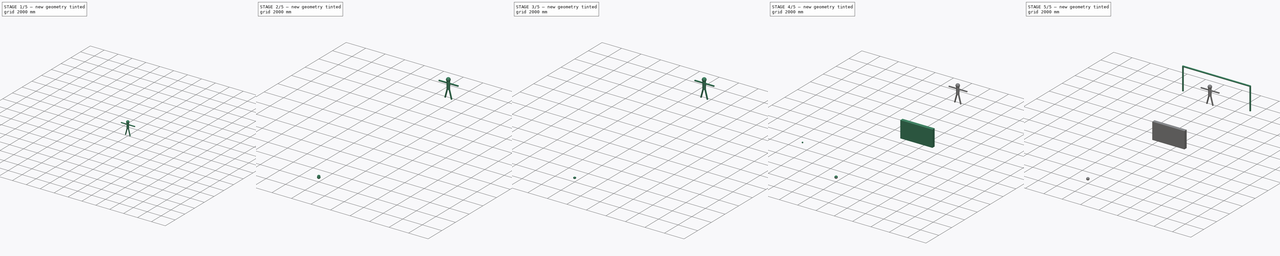
[diagram: build sequence overview — one tinted view per stage of 5, left to right]
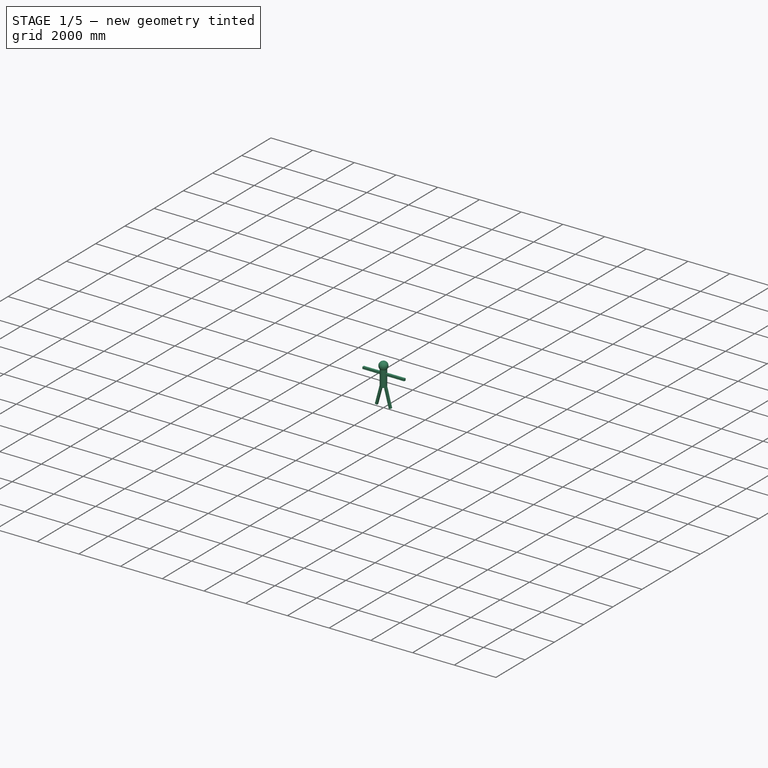
[diagram: stage 1 of 5 — iso view after this stage's code; geometry added in this stage tinted green]
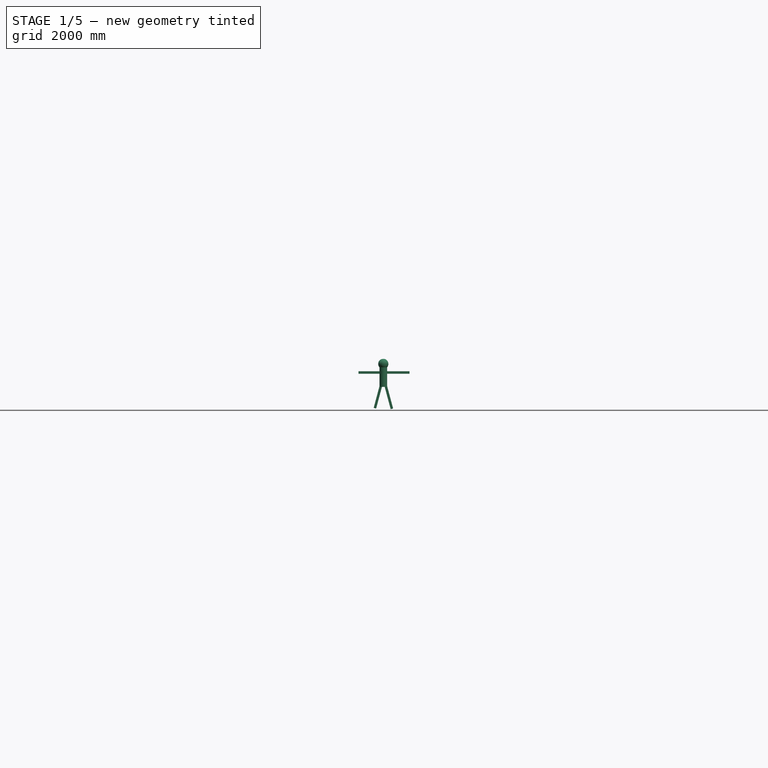
[diagram: stage 1 of 5 — front view after this stage's code; geometry added in this stage tinted green]
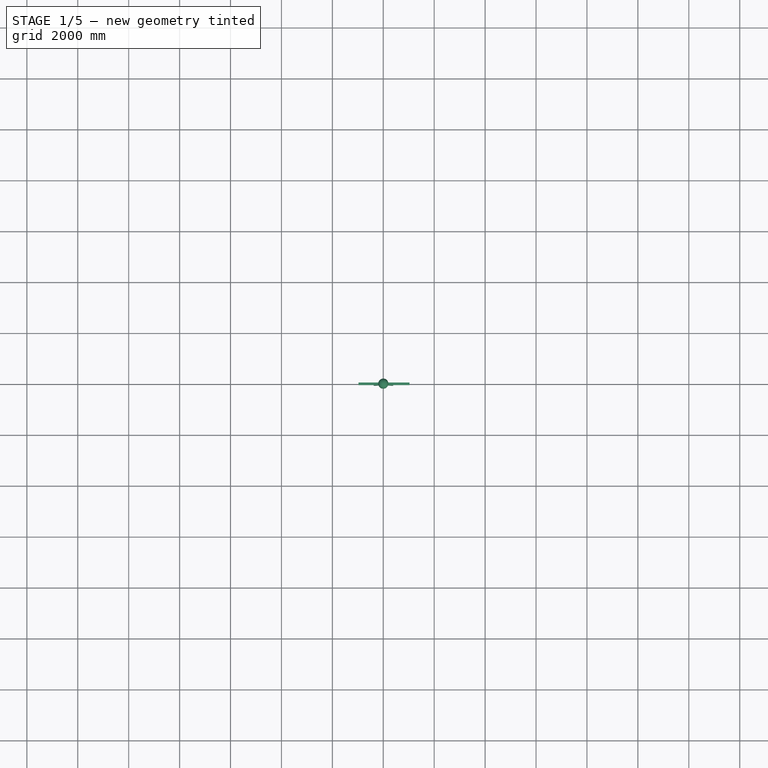
[diagram: stage 1 of 5 — top view after this stage's code; geometry added in this stage tinted green]
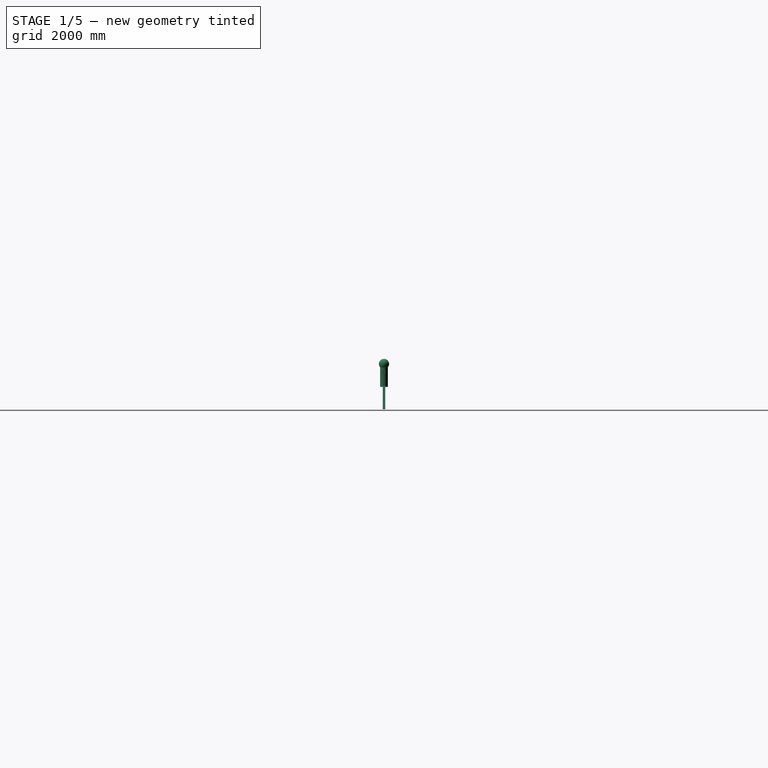
[diagram: stage 1 of 5 — right view after this stage's code; geometry added in this stage tinted green]
FCSTD DOCUMENT  (FreeCAD 0.21R31917 (Git))
Label: 115 - BOLA GOMO QUADRADO
License: All rights reserved
LicenseURL: http://en.wikipedia.org/wiki/All_rights_reserved
objects: Part::FeaturePython×5, Part::Cylinder×5, Part::Sphere×4, Part::Box×4, App::DocumentObjectGroup×3, Part::Compound×2, Part::MultiFuse×2, PartDesign::CoordinateSystem×2, App::Part×2, PartDesign::Body×1, Sketcher::SketchObject×1, PartDesign::Pad×1, PartDesign::Fillet×1, Part::MultiCommon×1, Part::Circle×1, Part::Sweep×1, App::FeaturePython×1, App::Link×1
note: 33 computed .brp shape members not serialized (recipe doc carries the construction recipe); baked Part::Feature solids carry a one-line shape summary decoded from their .brp

FEATURE [Part::Cylinder] Cylinder004
  Angle = 360
  AttacherType = Attacher::AttachEngine3D
  FirstAngle = 0
  Height = 900
  Placement = pos=(0,2.204e-13,1800) rot=(1,0,0;3.14159rad)
  Radius = 150
  SecondAngle = 0
FEATURE [Part::Sphere] Sphere003
  Angle1 = -90
  Angle2 = 90
  Angle3 = 360
  AttacherType = Attacher::AttachEngine3D
  Placement = pos=(0,0,1800) rot=(0,0,1;0rad)
  Radius = 200
FEATURE [Part::Box] Box001  label="Cube001"
  AttacherType = Attacher::AttachEngine3D
  Height = 1000
  Length = 100
  Placement = pos=(128.24,-50,1014.22) rot=(0,-1,0;3.40339rad)
  Width = 100
FEATURE [Part::Box] Box002  label="Cube002"
  AttacherType = Attacher::AttachEngine3D
  Height = 1000
  Length = 100
  Placement = pos=(-21.76,-50,1014.22) rot=(0,-1,0;2.87979rad)
  Width = 100
FEATURE [Part::Box] Box003  label="Cube003"
  AttacherType = Attacher::AttachEngine3D
  Height = 2000
  Length = 100
  Placement = pos=(1028.24,-50,1414.22) rot=(0,1,0;4.71239rad)
  Width = 100
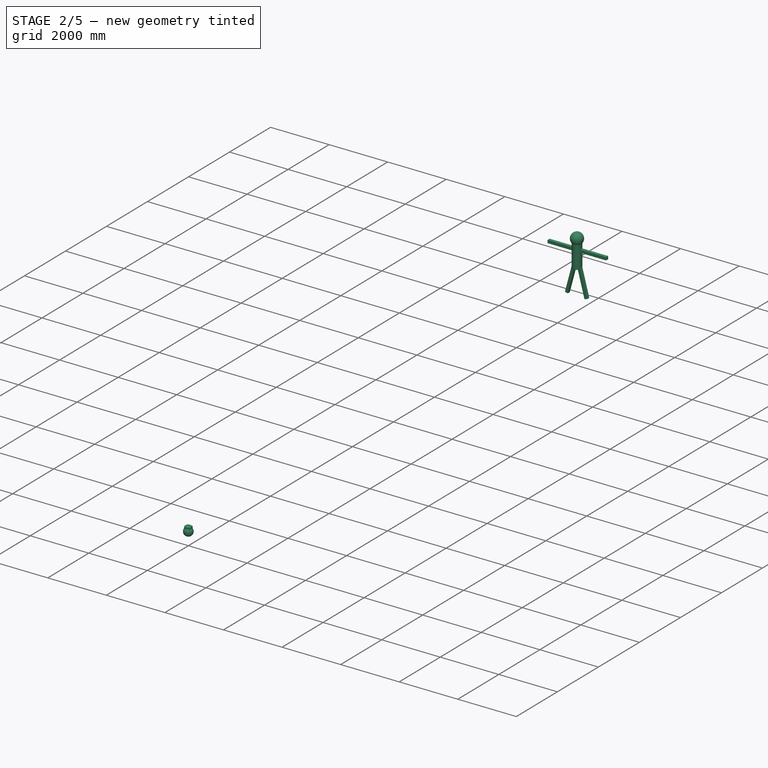
[diagram: stage 2 of 5 — iso view after this stage's code; geometry added in this stage tinted green]
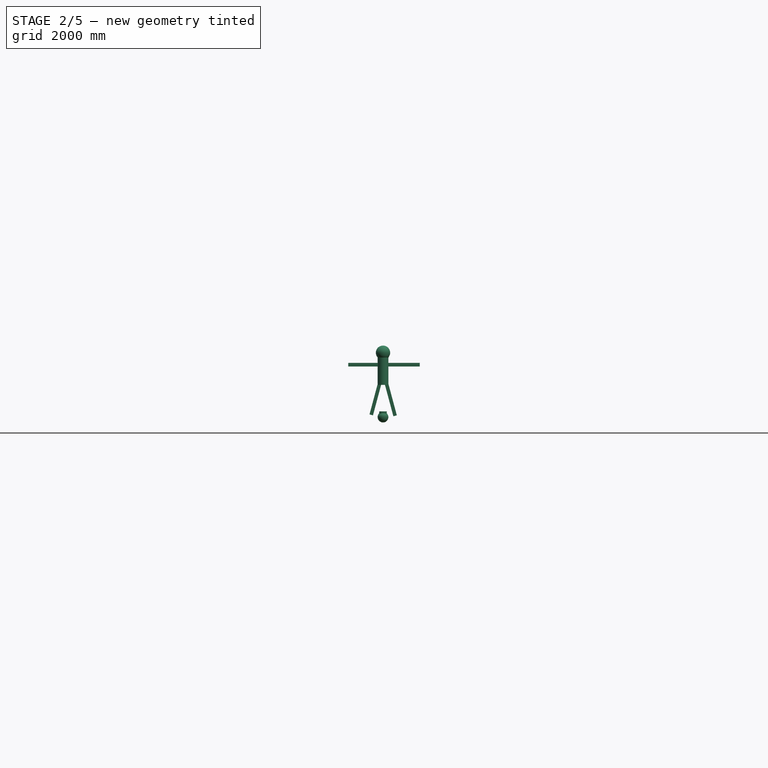
[diagram: stage 2 of 5 — front view after this stage's code; geometry added in this stage tinted green]
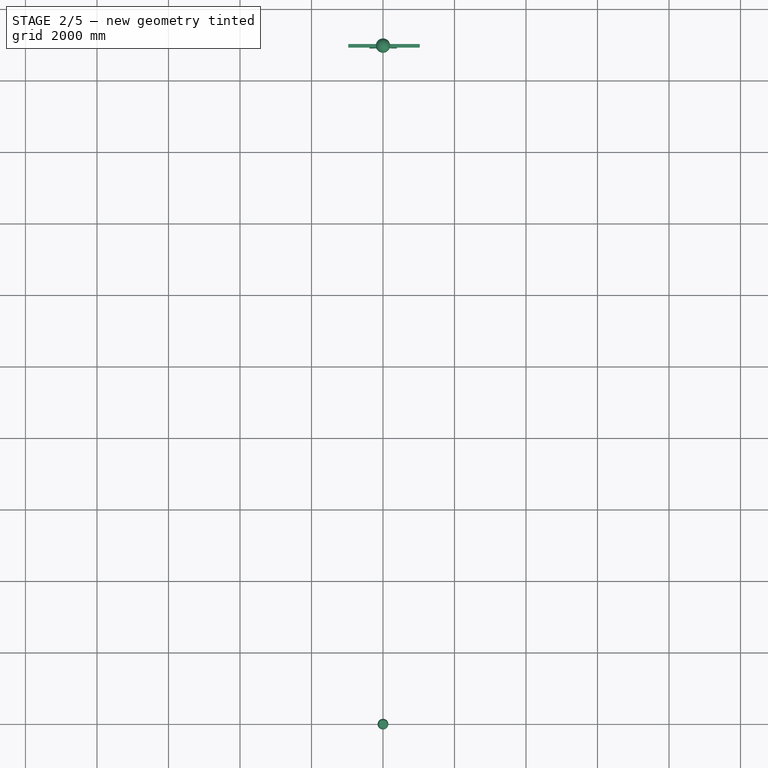
[diagram: stage 2 of 5 — top view after this stage's code; geometry added in this stage tinted green]
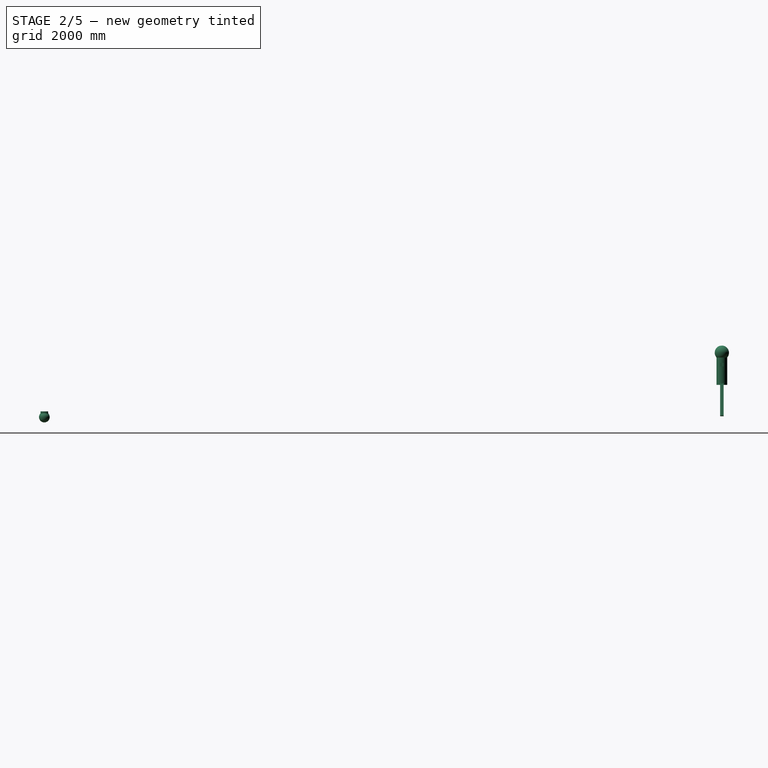
[diagram: stage 2 of 5 — right view after this stage's code; geometry added in this stage tinted green]
FEATURE [PartDesign::Body] Body
  Origin = -> Origin
FEATURE [Sketcher::SketchObject] Sketch
  FullyConstrained = false
  MapMode = 5
  Support = -> [XY_Plane]
  sketch-geometry (8):
    g0: LineSegment StartX=-86.675 StartY=86.675 StartZ=0 EndX=86.675 EndY=86.675 EndZ=0
    g1: LineSegment StartX=86.675 StartY=86.675 StartZ=0 EndX=86.675 EndY=-86.675 EndZ=0
    g2: LineSegment StartX=86.675 StartY=-86.675 StartZ=0 EndX=-86.675 EndY=-86.675 EndZ=0
    g3: LineSegment StartX=-86.675 StartY=-86.675 StartZ=0 EndX=-86.675 EndY=86.675 EndZ=0
    g4: ArcOfCircle CenterX=2.04e-14 CenterY=-99.1003 CenterZ=0 NormalX=0 NormalY=0 NormalZ=1 AngleXU=0 Radius=205 StartAngle=1.13426 EndAngle=2.00733
    g5: ArcOfCircle CenterX=99.1003 CenterY=-1.68e-14 CenterZ=0 NormalX=0 NormalY=0 NormalZ=1 AngleXU=0 Radius=205 StartAngle=2.70505 EndAngle=3.57813
    g6: ArcOfCircle CenterX=1.62e-14 CenterY=99.1003 CenterZ=0 NormalX=0 NormalY=0 NormalZ=1 AngleXU=0 Radius=205 StartAngle=4.27585 EndAngle=5.14893
    g7: ArcOfCircle CenterX=-99.1003 CenterY=-7.3e-15 CenterZ=0 NormalX=0 NormalY=0 NormalZ=1 AngleXU=0 Radius=205 StartAngle=5.84665 EndAngle=6.71972
  constraints (23):
    c: Coincident(g0,g1)
    c: Coincident(g1,g2)
    c: Coincident(g2,g3)
    c: Coincident(g3,g0)
    c: Horizontal(g0)
    c: Horizontal(g2)
    c: Vertical(g1)
    c: Vertical(g3)
    c: Symmetric(g2,g0,g-1)
    c: Equal(g0,g3)
    c: DistanceX(g0,g0) = 173.35
    c: Coincident(g4,g0)
    c: Coincident(g4,g0)
    c: Coincident(g5,g4)
    c: Coincident(g5,g2)
    c: Coincident(g6,g5)
    c: Coincident(g6,g1)
    c: Coincident(g7,g6)
    c: Coincident(g7,g4)
    c: Radius(g4) = 205
    c: Equal(g4,g5)
    c: Equal(g4,g6)
    c: Equal(g4,g7)
FEATURE [PartDesign::Pad] Pad
  AllowMultiFace = false
  Direction = (1,1,1)
  Length = 160
  Length2 = 100
  Profile = -> Sketch
  Type = 0
FEATURE [PartDesign::Fillet] Fillet
  Base = -> Pad [Edge2,Edge5,Edge1,Edge8]
  Radius = 25
  SupportTransform = false
  UseAllEdges = false
FEATURE [Part::Sphere] Sphere
  Angle1 = -90
  Angle2 = 90
  Angle3 = 360
  AttacherType = Attacher::AttachEngine3D
  Placement = pos=(0,0,0) rot=(0,1,0;1.5708rad)
  Radius = 150
FEATURE [PartDesign::CoordinateSystem] LCS_Origin
  AttacherType = Attacher::AttachEngine3D
  MapMode = 2
  Support = -> [X_Axis001]
FEATURE [App::DocumentObjectGroup] Constraints
FEATURE [App::FeaturePython] Variables  # WARN: FeaturePython — macro-defined, semantics opaque (R4)
  Type = App::PropertyContainer
  move = 5600
FEATURE [App::DocumentObjectGroup] Configurations
FEATURE [PartDesign::CoordinateSystem] LCS_0
  AttacherType = Attacher::AttachEngine3D
  MapMode = 2
  Support = -> [X_Axis002]
FEATURE [App::Part] Part
  Group = -> [LCS_0,Sketch,Pad,Fillet,Sphere,Common,Circle,Sweep,Compound,Clone,Clone001,Clone002,Clone003,Clone004,Compound001]
  Origin = -> Origin002
FEATURE [App::DocumentObjectGroup] Parts
  Group = -> [Body,Part]
FEATURE [App::Link] Part001
  AssemblyType = Part::Link
  AttachedBy = #LCS_0
  AttachedTo = Parent Assembly#LCS_Origin
  LinkPlacement = pos=(2778.72,5600,1639.6) rot=(1,1,1;9.77384rad)
  LinkedObject = -> Part
  Placement = pos=(2778.72,5600,1639.6) rot=(1,1,1;9.77384rad)
  SolverId = Asm4EE
  expr: .Placement.Base.x = Variables.move * -2.3e-05 * Variables.move + 0.625 * Variables.move
  expr: .Placement.Base.y = Variables.move
  expr: .Placement.Base.z = 150 + Variables.move * -1.5e-05 * Variables.move + 0.35 * Variables.move
  expr: .Placement.Rotation.Angle = Variables.move / 10
FEATURE [App::Part] Model
  AssemblyType = Part::Link
  Group = -> [LCS_Origin,Constraints,Variables,Configurations,Part001]
  Origin = -> Origin001
  Type = Assembly
FEATURE [Part::Cylinder] Cylinder003
  Angle = 360
  AttacherType = Attacher::AttachEngine3D
  FirstAngle = 0
  Height = 10
  Radius = 2
  SecondAngle = 0
FEATURE [Part::MultiFuse] Fusion001
  Placement = pos=(0,18950,0) rot=(0,0,1;0rad)
  Shapes = -> [Box003,Box002,Box001,Sphere003,Cylinder004]
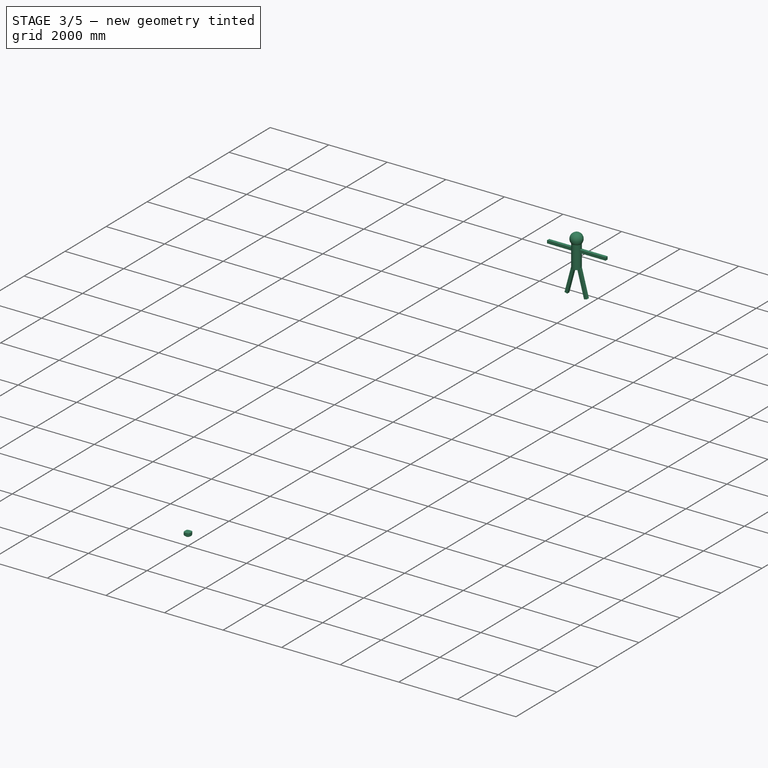
[diagram: stage 3 of 5 — iso view after this stage's code; geometry added in this stage tinted green]
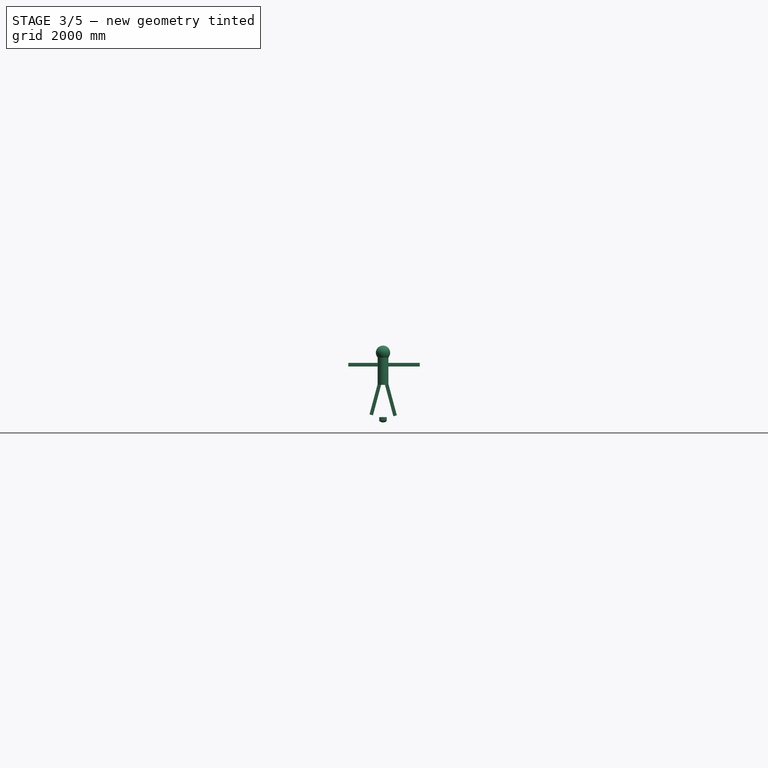
[diagram: stage 3 of 5 — front view after this stage's code; geometry added in this stage tinted green]
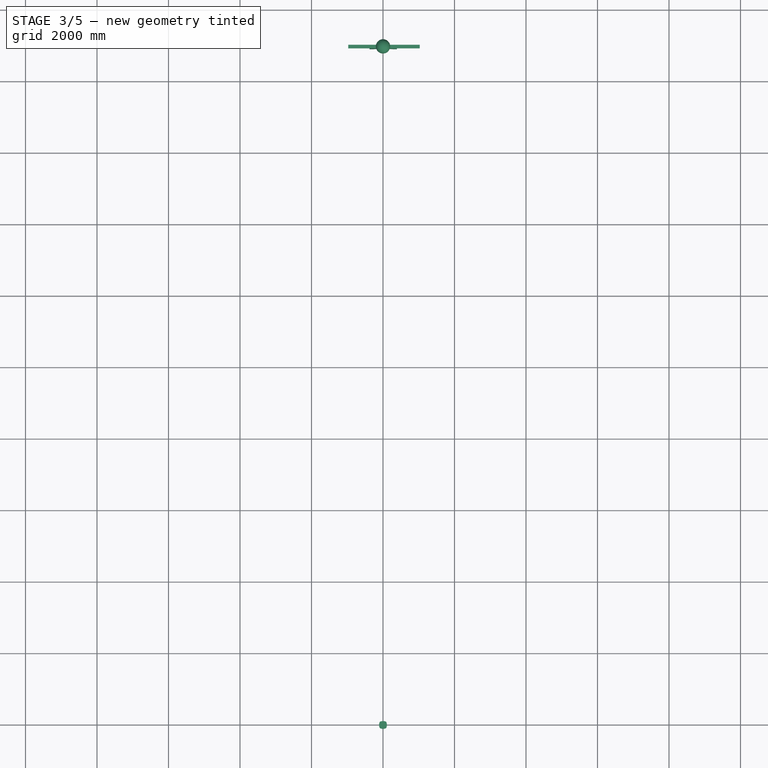
[diagram: stage 3 of 5 — top view after this stage's code; geometry added in this stage tinted green]
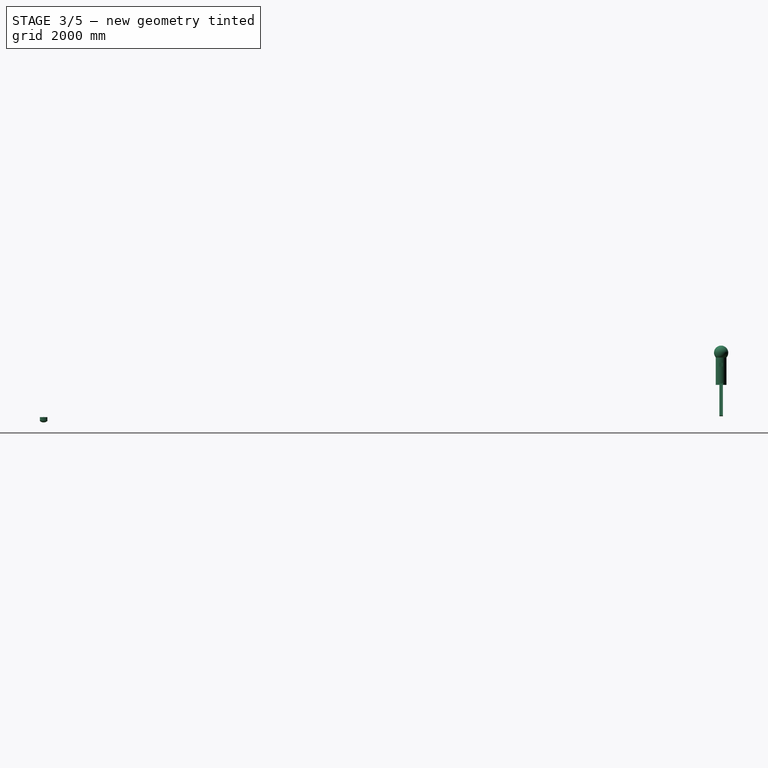
[diagram: stage 3 of 5 — right view after this stage's code; geometry added in this stage tinted green]
FEATURE [Part::MultiCommon] Common
  Shapes = -> [Sphere,Fillet]
FEATURE [Part::Circle] Circle
  Angle1 = 0
  Angle2 = 360
  AttacherType = Attacher::AttachEngine3D
  Placement = pos=(-2.4e-14,-105.72,106.06) rot=(0,-1,0;1.5708rad)
  Radius = 4
FEATURE [Part::Sweep] Sweep
  Frenet = true
  Sections = -> [Circle]
  Solid = true
  Spine = -> Common [Edge4,Edge3,Edge2,Edge1,Edge8,Edge7,Edge6,Edge5]
  Transition = 1
FEATURE [Part::Compound] Compound
  Links = -> [Common,Sweep]
FEATURE [Part::FeaturePython] Clone  label="Compound001"  # Draft clone (typed FeaturePython)
  AttacherType = Attacher::AttachEngine3D
  Fuse = false
  Objects = -> [Compound]
  Placement = pos=(0,0,0) rot=(1,0,0;1.5708rad)
  Scale = (1,1,1)
FEATURE [Part::FeaturePython] Clone001  label="Compound002"  # Draft clone (typed FeaturePython)
  AttacherType = Attacher::AttachEngine3D
  Fuse = false
  Objects = -> [Clone]
  Placement = pos=(0,0,0) rot=(-1,0,0;1.5708rad)
  Scale = (1,1,1)
FEATURE [Part::FeaturePython] Clone002  label="Compound003"  # Draft clone (typed FeaturePython)
  AttacherType = Attacher::AttachEngine3D
  Fuse = false
  Objects = -> [Clone001]
  Placement = pos=(0,0,0) rot=(1,0,0;3.14159rad)
  Scale = (1,1,1)
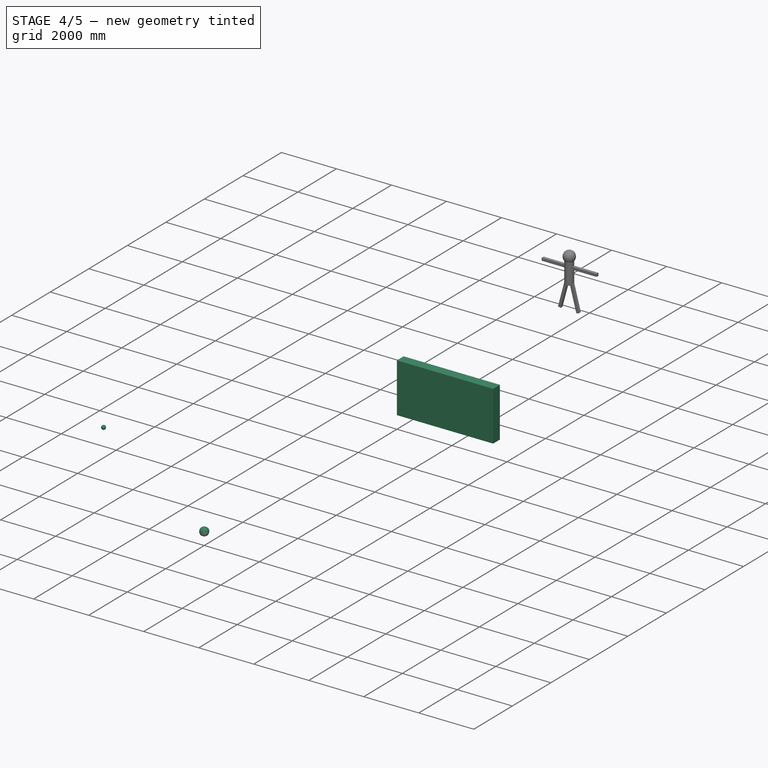
[diagram: stage 4 of 5 — iso view after this stage's code; geometry added in this stage tinted green]
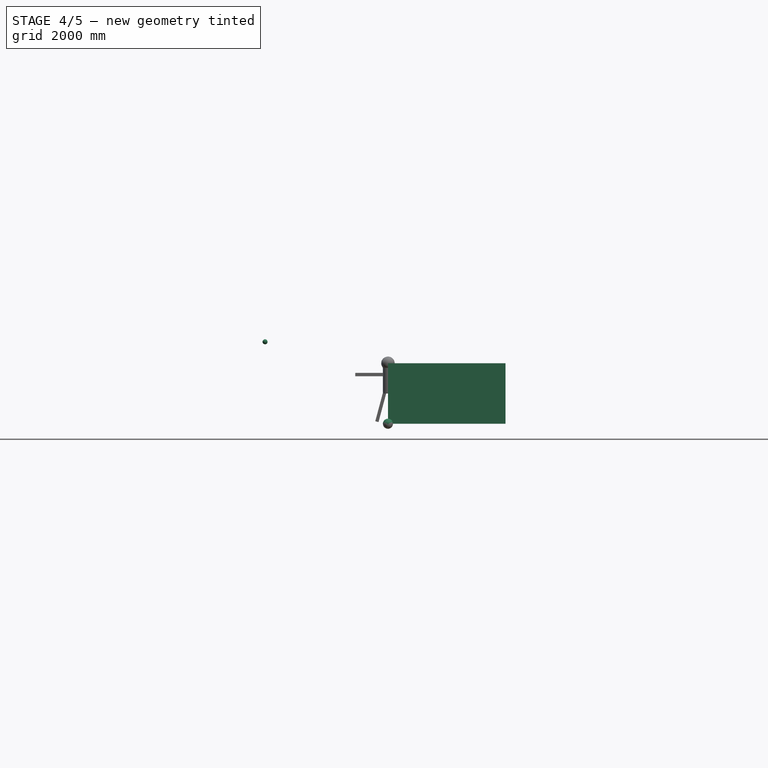
[diagram: stage 4 of 5 — front view after this stage's code; geometry added in this stage tinted green]
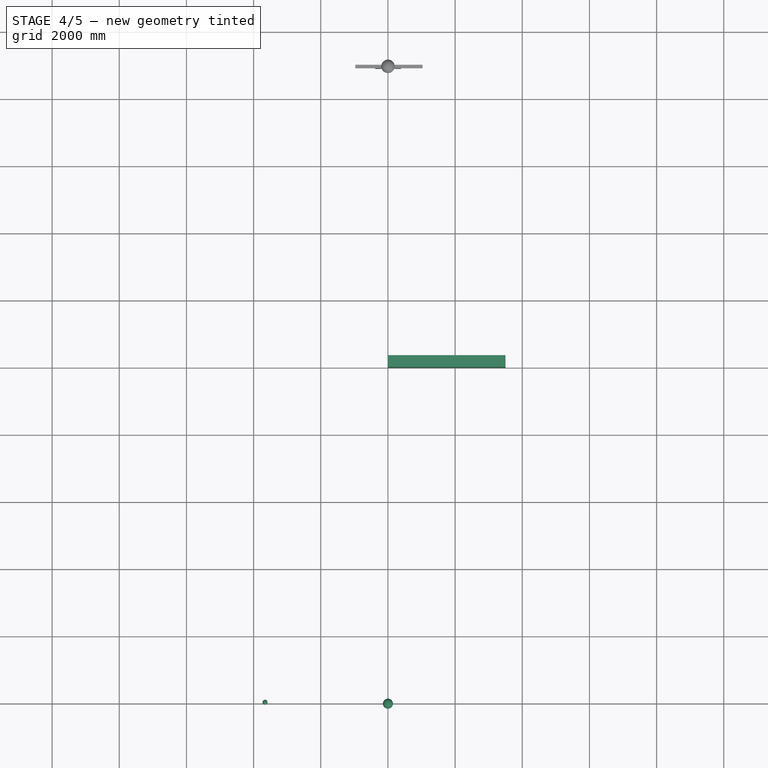
[diagram: stage 4 of 5 — top view after this stage's code; geometry added in this stage tinted green]
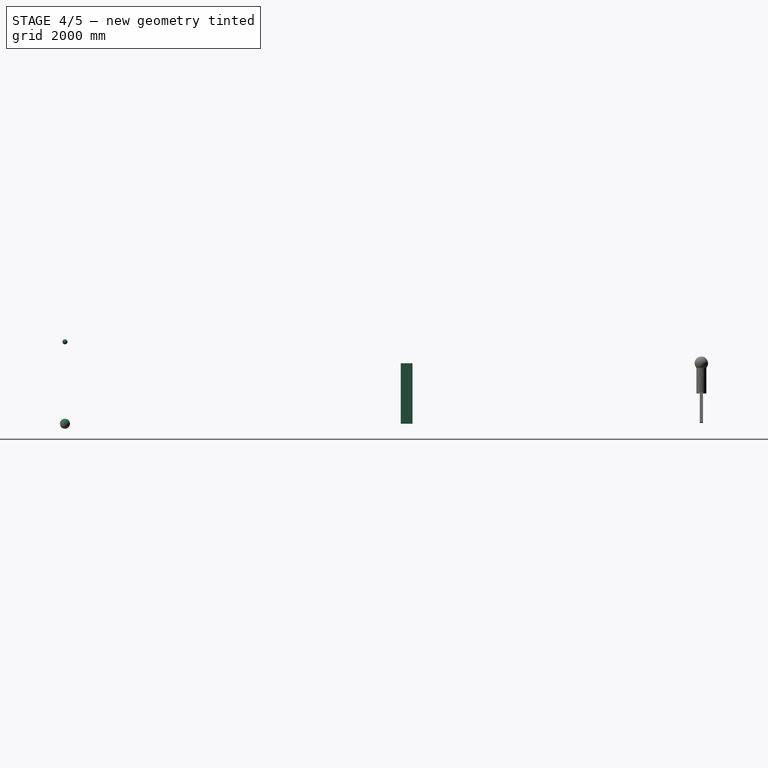
[diagram: stage 4 of 5 — right view after this stage's code; geometry added in this stage tinted green]
FEATURE [Part::FeaturePython] Clone003  label="Compound004"  # Draft clone (typed FeaturePython)
  AttacherType = Attacher::AttachEngine3D
  Fuse = false
  Objects = -> [Clone002]
  Placement = pos=(0,0,0) rot=(0,1,0;1.5708rad)
  Scale = (1,1,1)
FEATURE [Part::FeaturePython] Clone004  label="Compound005"  # Draft clone (typed FeaturePython)
  AttacherType = Attacher::AttachEngine3D
  Fuse = false
  Objects = -> [Clone003]
  Placement = pos=(0,0,0) rot=(0,-1,0;1.5708rad)
  Scale = (1,1,1)
FEATURE [Part::Compound] Compound001  label="Compound006"
  Links = -> [Clone004,Clone003,Clone002,Clone001,Clone,Compound]
FEATURE [Part::Sphere] Sphere002
  Angle1 = -90
  Angle2 = 90
  Angle3 = 360
  AttacherType = Attacher::AttachEngine3D
  Placement = pos=(-3660,0,2440) rot=(0,0,1;0rad)
  Radius = 75
FEATURE [Part::Box] Box  label="Cube"
  AttacherType = Attacher::AttachEngine3D
  Height = 1800
  Length = 3500
  Placement = pos=(0,10000,0) rot=(0,0,1;0rad)
  Width = 350
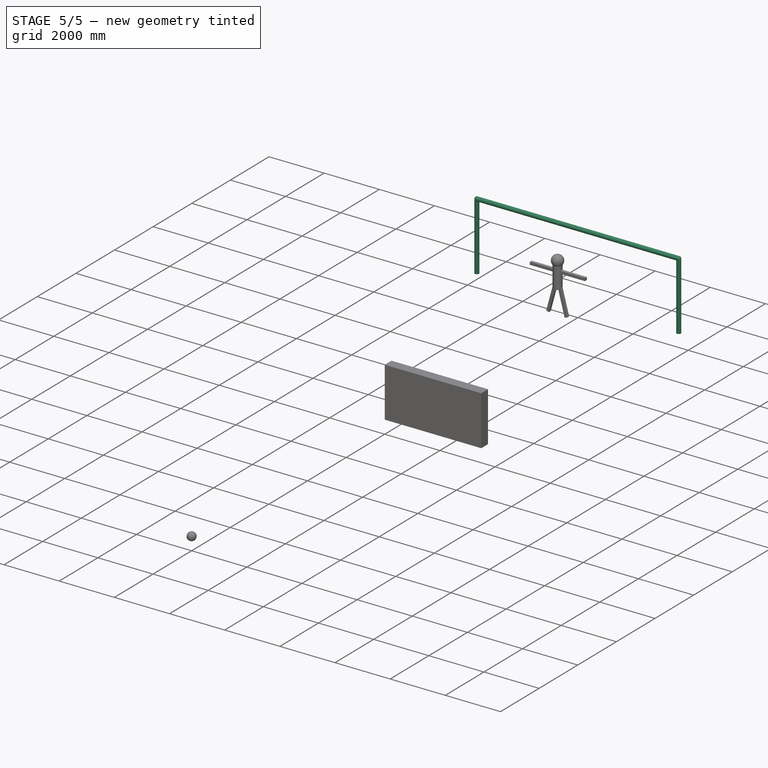
[diagram: stage 5 of 5 — iso view after this stage's code; geometry added in this stage tinted green]
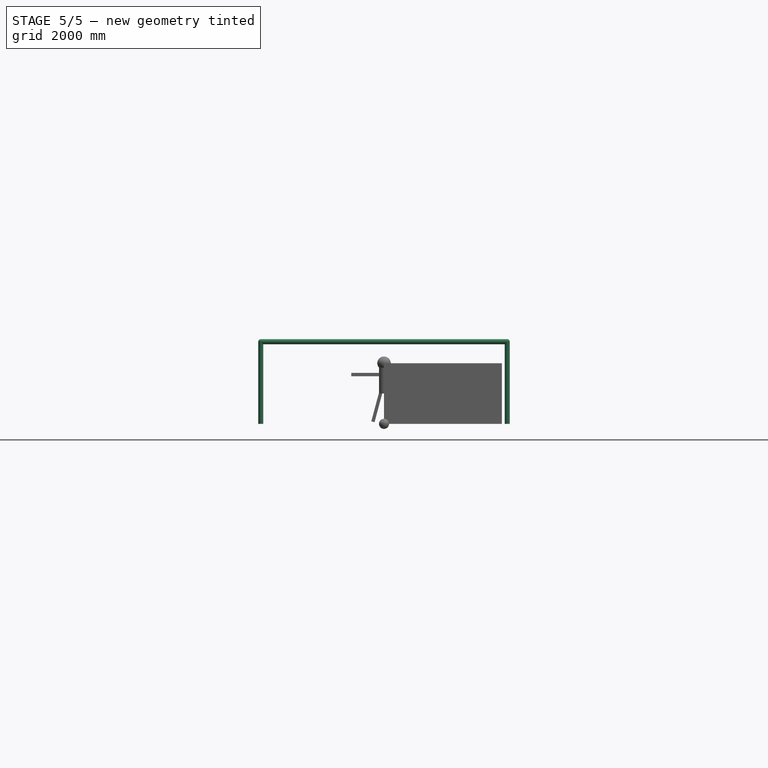
[diagram: stage 5 of 5 — front view after this stage's code; geometry added in this stage tinted green]
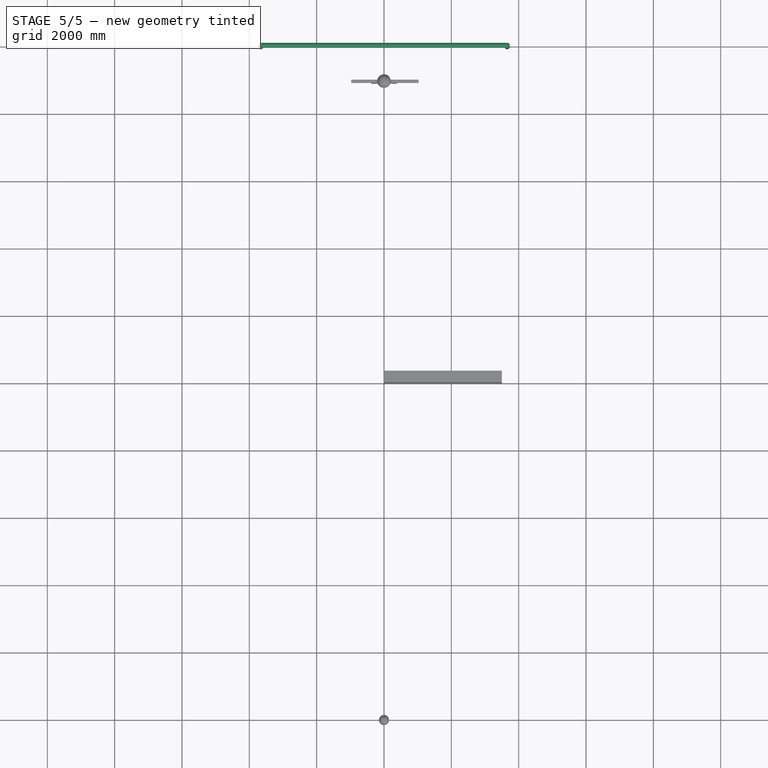
[diagram: stage 5 of 5 — top view after this stage's code; geometry added in this stage tinted green]
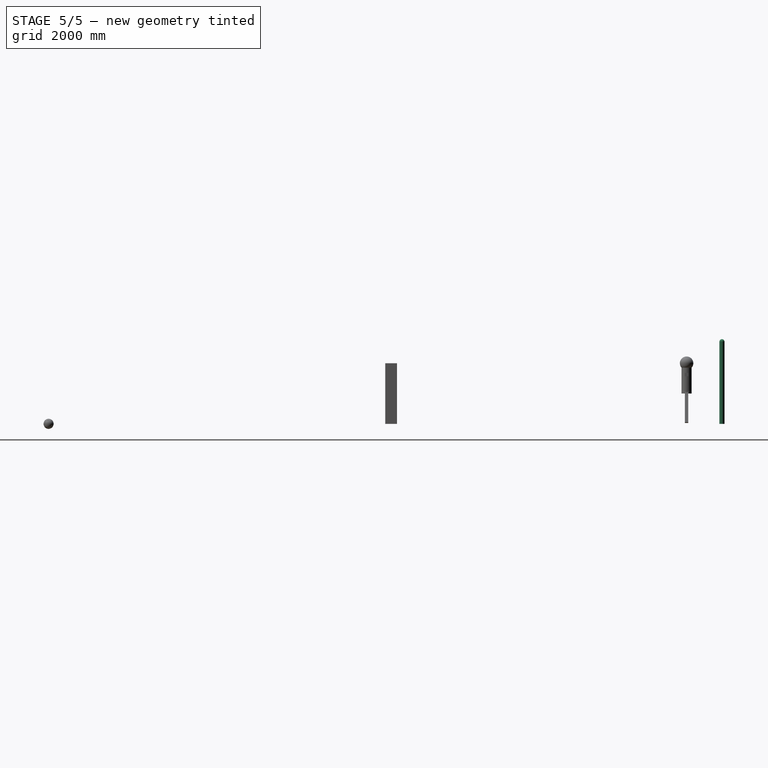
[diagram: stage 5 of 5 — right view after this stage's code; geometry added in this stage tinted green]
FEATURE [Part::Cylinder] Cylinder
  Angle = 360
  AttacherType = Attacher::AttachEngine3D
  FirstAngle = 0
  Height = 2440
  Placement = pos=(-3660,0,0) rot=(0,0,1;0rad)
  Radius = 75
  SecondAngle = 0
FEATURE [Part::Cylinder] Cylinder001
  Angle = 360
  AttacherType = Attacher::AttachEngine3D
  FirstAngle = 0
  Height = 2440
  Placement = pos=(3660,0,0) rot=(0,0,1;0rad)
  Radius = 75
  SecondAngle = 0
FEATURE [Part::Cylinder] Cylinder002
  Angle = 360
  AttacherType = Attacher::AttachEngine3D
  FirstAngle = 0
  Height = 7320
  Placement = pos=(-3660,0,2440) rot=(0,1,0;1.5708rad)
  Radius = 75
  SecondAngle = 0
FEATURE [Part::Sphere] Sphere001
  Angle1 = -90
  Angle2 = 90
  Angle3 = 360
  AttacherType = Attacher::AttachEngine3D
  Placement = pos=(3660,0,2440) rot=(0,0,1;0rad)
  Radius = 75
FEATURE [Part::MultiFuse] Fusion
  Placement = pos=(0,20000,0) rot=(0,0,1;0rad)
  Shapes = -> [Sphere002,Sphere001,Cylinder002,Cylinder001,Cylinder]
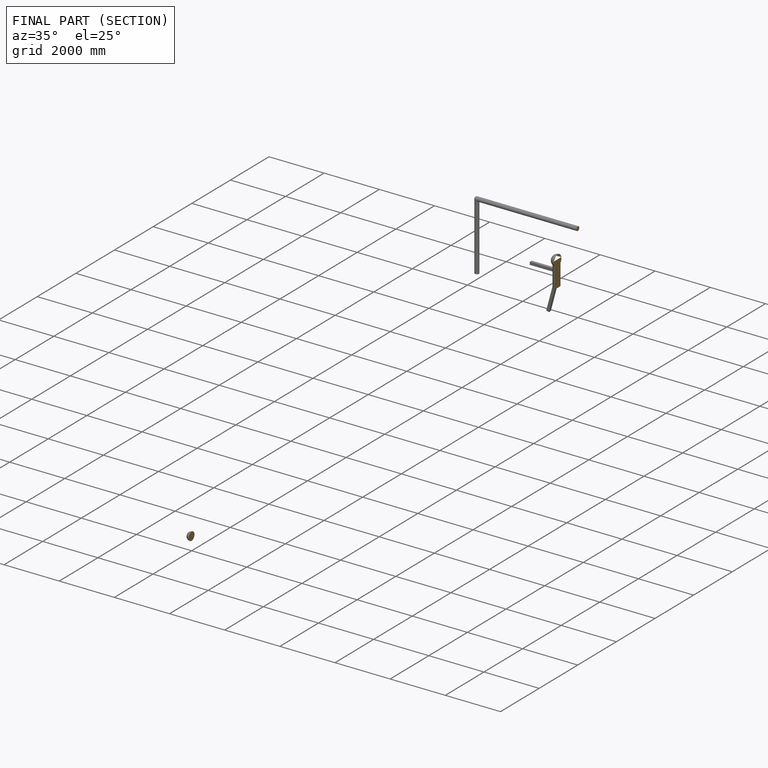
[diagram: finished part — half-section view (interior)]
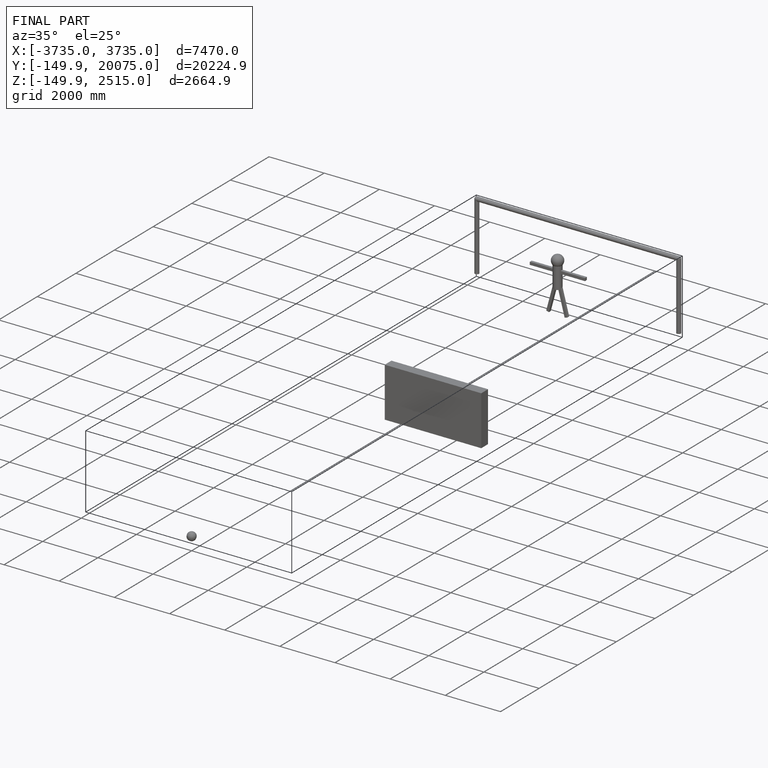
[diagram: finished part — iso view with bounding-box wireframe]
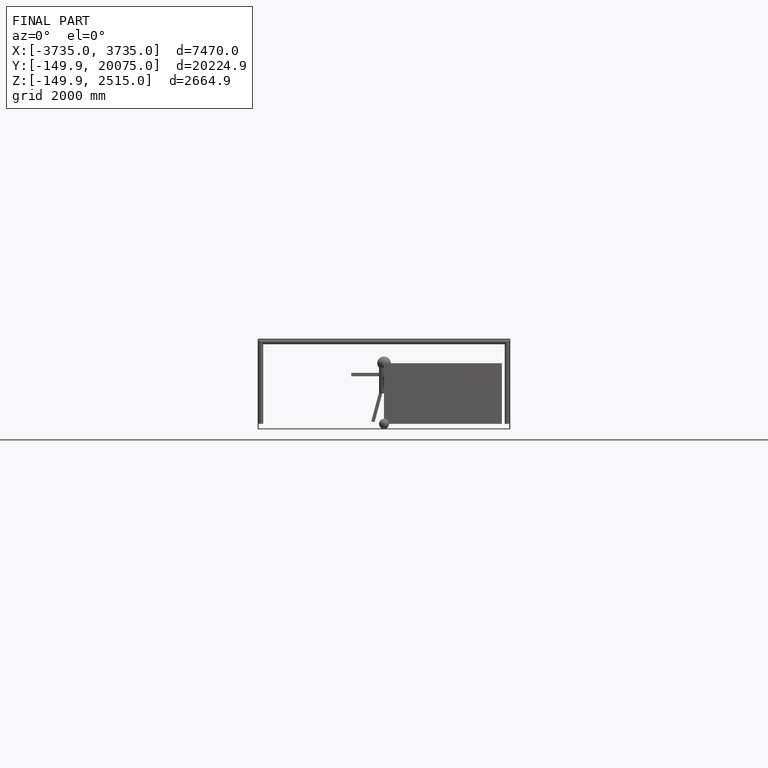
[diagram: finished part — front view with bounding-box wireframe]
